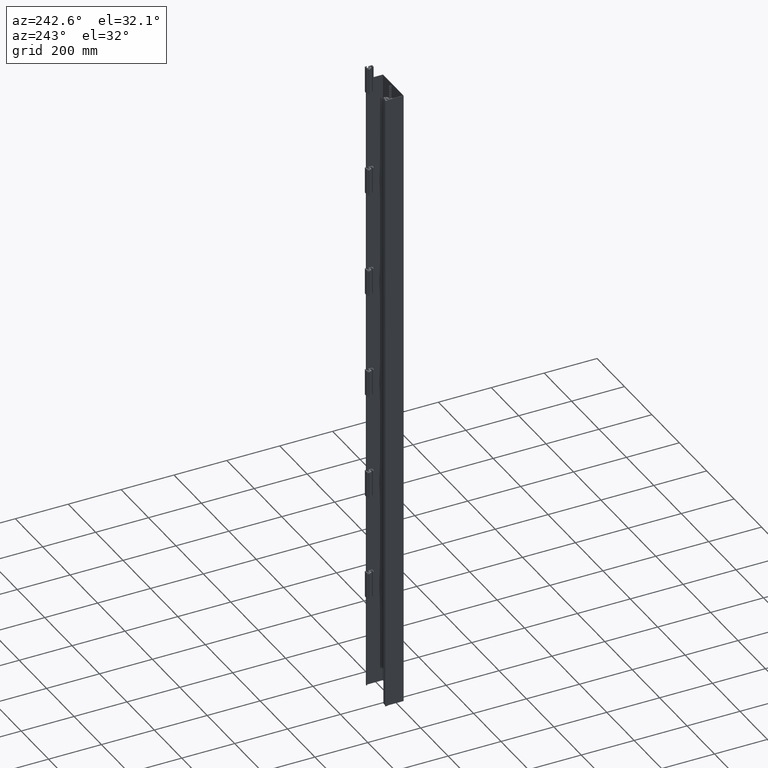
[diagram: clean part render]
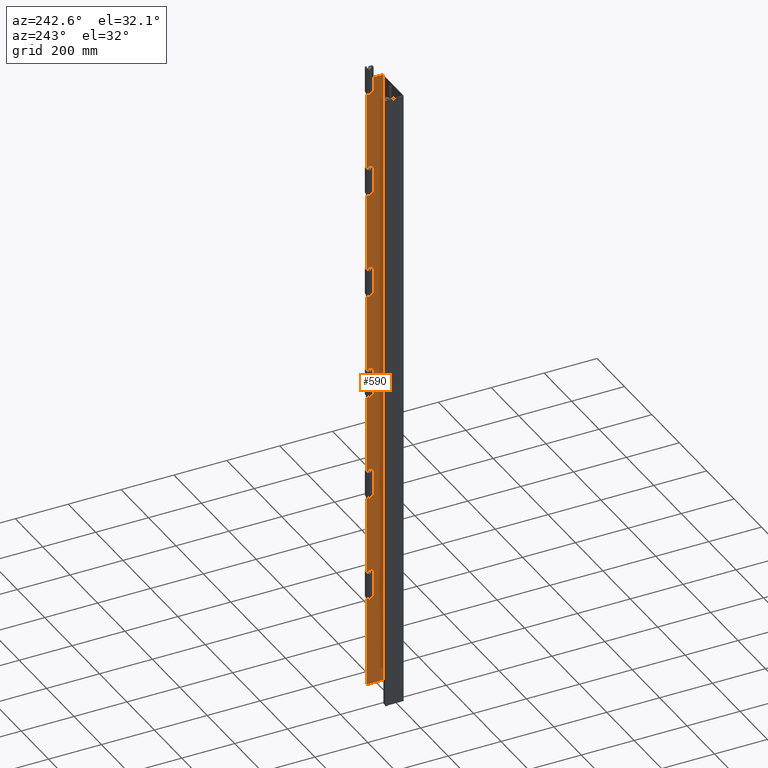
[diagram: same view with one face highlighted and labeled with its STEP entity id]
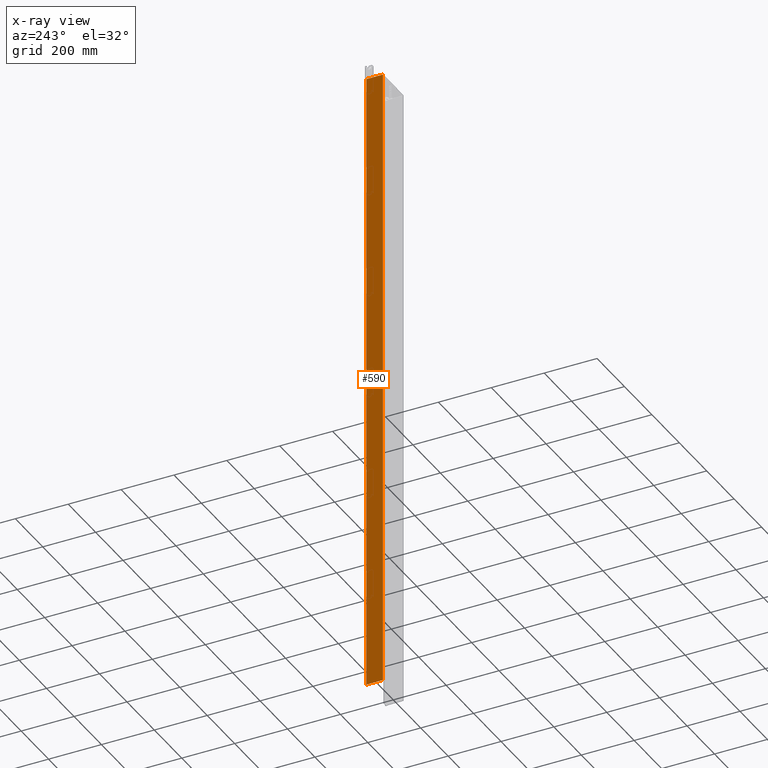
[diagram: x-ray of the same camera — body ghosted, the highlighted face saturated]
A machine part, auxiliary view. The second image highlights one B-rep face of the part: STEP entity #590.
The next image is the same camera in x-ray: the body ghosted, the highlighted face saturated — about 0% of this face is hidden behind the body in this view.
In plain terms, the highlighted planar face has unit normal (-1, 0, 0).
Its self-contained STEP definition (entity closure, byte-faithful):
#310=DIRECTION('',(0.E0,-1.E0,0.E0));
#311=VECTOR('',#310,6.3E1);
#312=CARTESIAN_POINT('',(7.4E1,6.4E1,0.E0));
#313=LINE('',#312,#311);
#350=DIRECTION('',(0.E0,0.E0,-1.E0));
#351=VECTOR('',#350,2.4E3);
#352=CARTESIAN_POINT('',(7.4E1,6.4E1,0.E0));
#353=LINE('',#352,#351);
#354=DIRECTION('',(0.E0,0.E0,-1.E0));
#355=VECTOR('',#354,2.4E3);
#356=CARTESIAN_POINT('',(7.4E1,1.E0,0.E0));
#357=LINE('',#356,#355);
#398=DIRECTION('',(0.E0,-1.E0,0.E0));
#399=VECTOR('',#398,6.3E1);
#400=CARTESIAN_POINT('',(7.4E1,6.4E1,-2.4E3));
#401=LINE('',#400,#399);
#436=CARTESIAN_POINT('',(7.4E1,6.4E1,0.E0));
#437=VERTEX_POINT('',#436);
#438=CARTESIAN_POINT('',(7.4E1,1.E0,0.E0));
#439=VERTEX_POINT('',#438);
#460=CARTESIAN_POINT('',(7.4E1,6.4E1,-2.4E3));
#461=VERTEX_POINT('',#460);
#462=CARTESIAN_POINT('',(7.4E1,1.E0,-2.4E3));
#463=VERTEX_POINT('',#462);
#577=CARTESIAN_POINT('',(7.4E1,6.4E1,0.E0));
#578=DIRECTION('',(-1.E0,0.E0,0.E0));
#579=DIRECTION('',(0.E0,-1.E0,0.E0));
#580=AXIS2_PLACEMENT_3D('',#577,#578,#579);
#581=PLANE('',#580);
#582=ORIENTED_EDGE('',*,*,#493,.T.);
#584=ORIENTED_EDGE('',*,*,#583,.T.);
#586=ORIENTED_EDGE('',*,*,#585,.F.);
#587=ORIENTED_EDGE('',*,*,#569,.F.);
#588=EDGE_LOOP('',(#582,#584,#586,#587));
#589=FACE_OUTER_BOUND('',#588,.F.);
#493=EDGE_CURVE('',#437,#439,#313,.T.);
#569=EDGE_CURVE('',#437,#461,#353,.T.);
#583=EDGE_CURVE('',#439,#463,#357,.T.);
#585=EDGE_CURVE('',#461,#463,#401,.T.);
#590=ADVANCED_FACE('',(#589),#581,.T.);